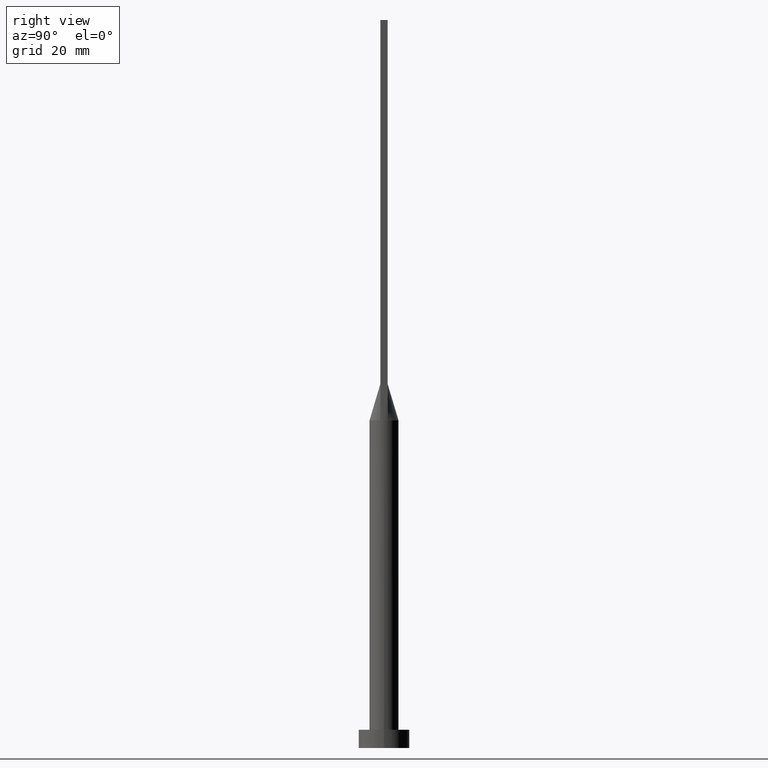
[diagram: clean part render]
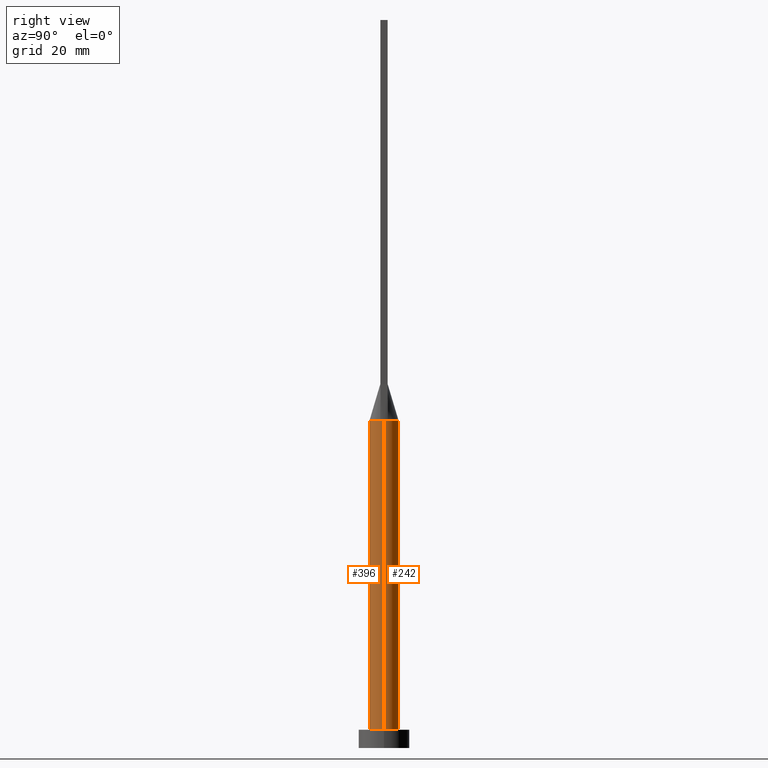
[diagram: same view with one multi-face feature highlighted, each face labeled with its STEP entity id]
A machine part, right view. The highlighted faces form ONE feature: a constant-radius fillet chain: 2 tangent blend faces with common blend radius 4 mm. The faces share edges in the B-rep.
Their STEP definitions:
[1] entity #242 (Cylinder):
#2 = ORIENTED_EDGE ( 'NONE', *, *, #393, .F. ) ;
#9 = CARTESIAN_POINT ( 'NONE',  ( 3.653499896451231521, 1.673258289339057958, 90.00000000000001421 ) ) ;
#11 = CARTESIAN_POINT ( 'NONE',  ( -3.267840578657194239, 2.338604872288698289, 90.00000000000000000 ) ) ;
#12 = AXIS2_PLACEMENT_3D ( 'NONE', #299, #159, #514 ) ;
#20 = DIRECTION ( 'NONE',  ( -1.000000000000000000, 0.000000000000000000, 0.000000000000000000 ) ) ;
#29 = EDGE_CURVE ( 'NONE', #459, #220, #182, .T. ) ;
#51 = CARTESIAN_POINT ( 'NONE',  ( 2.346407003458400808, 3.270103945996944983, 89.99999999999998579 ) ) ;
#56 = CARTESIAN_POINT ( 'NONE',  ( -4.000000000000000000, -2.459132308497027359E-16, 90.00000000000001421 ) ) ;
#79 = CIRCLE ( 'NONE', #348, 4.000000000000000000 ) ;
#80 = CARTESIAN_POINT ( 'NONE',  ( 4.000000000000000000, -1.256865613583667397E-17, 90.00000000000001421 ) ) ;
#89 = CARTESIAN_POINT ( 'NONE',  ( -3.865236553917747120, 1.030730781768519622, 90.00000000000001421 ) ) ;
#98 = CARTESIAN_POINT ( 'NONE',  ( 1.940702937457743582, 3.532374760555930582, 90.00000000000001421 ) ) ;
#101 = CARTESIAN_POINT ( 'NONE',  ( -1.023074425454088221, 3.898373771260455811, 90.00000000000001421 ) ) ;
#130 = DIRECTION ( 'NONE',  ( 0.000000000000000000, 0.000000000000000000, 1.000000000000000000 ) ) ;
#132 = EDGE_CURVE ( 'NONE', #489, #220, #79, .T. ) ;
#138 = CARTESIAN_POINT ( 'NONE',  ( -3.781952206537765537, 1.341853921743403788, 90.00000000000001421 ) ) ;
#140 = CARTESIAN_POINT ( 'NONE',  ( 4.000000000000000000, 4.898587196589412829E-16, 5.000000000000000000 ) ) ;
#150 = LINE ( 'NONE', #505, #361 ) ;
#156 = ORIENTED_EDGE ( 'NONE', *, *, #29, .F. ) ;
#159 = DIRECTION ( 'NONE',  ( 0.000000000000000000, 0.000000000000000000, 1.000000000000000000 ) ) ;
#162 = DIRECTION ( 'NONE',  ( -0.000000000000000000, -0.000000000000000000, -1.000000000000000000 ) ) ;
#182 = LINE ( 'NONE', #256, #279 ) ;
#185 = CARTESIAN_POINT ( 'NONE',  ( 0.000000000000000000, 0.000000000000000000, 5.000000000000000000 ) ) ;
#189 = CARTESIAN_POINT ( 'NONE',  ( 0.5121855420560009753, 4.000000000000000888, 90.00000000000002842 ) ) ;
#192 = CARTESIAN_POINT ( 'NONE',  ( 3.267840578657193795, 2.338604872288698289, 89.99999999999998579 ) ) ;
#200 = AXIS2_PLACEMENT_3D ( 'NONE', #207, #162, #20 ) ;
#207 = CARTESIAN_POINT ( 'NONE',  ( 0.000000000000000000, 0.000000000000000000, 90.00000000000001421 ) ) ;
#208 = ORIENTED_EDGE ( 'NONE', *, *, #132, .T. ) ;
#220 = VERTEX_POINT ( 'NONE', #564 ) ;
#228 = CARTESIAN_POINT ( 'NONE',  ( 1.023074425454087999, 3.898373771260456255, 90.00000000000001421 ) ) ;
#232 = CARTESIAN_POINT ( 'NONE',  ( -3.009488128496037529, 2.672487015486668671, 90.00000000000001421 ) ) ;
#236 = EDGE_CURVE ( 'NONE', #456, #459, #370, .T. ) ;
#242 = ADVANCED_FACE ( 'NONE', ( #382 ), #385, .T. ) ;
#255 = DIRECTION ( 'NONE',  ( 1.000000000000000000, 0.000000000000000000, 0.000000000000000000 ) ) ;
#256 = CARTESIAN_POINT ( 'NONE',  ( -4.000000000000000000, 0.000000000000000000, 90.00000000000001421 ) ) ;
#269 = CARTESIAN_POINT ( 'NONE',  ( 3.865212754195084699, 1.030724393897464841, 90.00000000000001421 ) ) ;
#279 = VECTOR ( 'NONE', #438, 1000.000000000000000 ) ;
#299 = CARTESIAN_POINT ( 'NONE',  ( 0.000000000000000000, 0.000000000000000000, 90.00000000000001421 ) ) ;
#308 = VERTEX_POINT ( 'NONE', #446 ) ;
#317 = CARTESIAN_POINT ( 'NONE',  ( -3.653499896451231521, 1.673258289339058180, 90.00000000000001421 ) ) ;
#320 = DIRECTION ( 'NONE',  ( 0.000000000000000000, 0.000000000000000000, 1.000000000000000000 ) ) ;
#327 = CARTESIAN_POINT ( 'NONE',  ( 3.009488128496037085, 2.672487015486669115, 90.00000000000000000 ) ) ;
#331 = ORIENTED_EDGE ( 'NONE', *, *, #520, .T. ) ;
#347 = VERTEX_POINT ( 'NONE', #80 ) ;
#348 = AXIS2_PLACEMENT_3D ( 'NONE', #185, #320, #498 ) ;
#360 = CARTESIAN_POINT ( 'NONE',  ( -0.5121855420560009753, 4.000000000000000888, 90.00000000000001421 ) ) ;
#361 = VECTOR ( 'NONE', #448, 1000.000000000000000 ) ;
#367 = CARTESIAN_POINT ( 'NONE',  ( -2.346407003458401253, 3.270103945996944095, 90.00000000000000000 ) ) ;
#370 = CIRCLE ( 'NONE', #12, 4.000000000000000000 ) ;
#382 = FACE_OUTER_BOUND ( 'NONE', #581, .T. ) ;
#385 = CYLINDRICAL_SURFACE ( 'NONE', #200, 4.000000000000000000 ) ;
#393 = EDGE_CURVE ( 'NONE', #347, #308, #509, .T. ) ;
#438 = DIRECTION ( 'NONE',  ( -0.000000000000000000, -0.000000000000000000, -1.000000000000000000 ) ) ;
#441 = ORIENTED_EDGE ( 'NONE', *, *, #493, .F. ) ;
#446 = CARTESIAN_POINT ( 'NONE',  ( 3.865212754195084699, 1.030724393897464841, 90.00000000000001421 ) ) ;
#448 = DIRECTION ( 'NONE',  ( -0.000000000000000000, -0.000000000000000000, -1.000000000000000000 ) ) ;
#456 = VERTEX_POINT ( 'NONE', #536 ) ;
#459 = VERTEX_POINT ( 'NONE', #56 ) ;
#465 = ORIENTED_EDGE ( 'NONE', *, *, #236, .F. ) ;
#467 = B_SPLINE_CURVE_WITH_KNOTS ( 'NONE', 3,
 ( #269, #502, #9, #192, #327, #51, #98, #228, #189, #360, #101, #542, #367, #232, #11, #317, #138, #89 ),
 .UNSPECIFIED., .F., .F.,
 ( 4, 2, 2, 2, 2, 2, 2, 2, 4 ),
 ( 0.000000000000000000, 0.1250000000000000000, 0.2500000000000000000, 0.3750000000000000000, 0.5000000000000000000, 0.6250000000000000000, 0.7500000000000000000, 0.8750000000000000000, 1.000000000000000000 ),
 .UNSPECIFIED. ) ;
#489 = VERTEX_POINT ( 'NONE', #140 ) ;
#493 = EDGE_CURVE ( 'NONE', #308, #456, #467, .T. ) ;
#498 = DIRECTION ( 'NONE',  ( 1.000000000000000000, 0.000000000000000000, 0.000000000000000000 ) ) ;
#502 = CARTESIAN_POINT ( 'NONE',  ( 3.781952206537764205, 1.341853921743403788, 89.99999999999998579 ) ) ;
#505 = CARTESIAN_POINT ( 'NONE',  ( 4.000000000000000000, 4.898587196589412829E-16, 90.00000000000001421 ) ) ;
#509 = CIRCLE ( 'NONE', #545, 4.000000000000000000 ) ;
#514 = DIRECTION ( 'NONE',  ( 1.000000000000000000, 0.000000000000000000, 0.000000000000000000 ) ) ;
#520 = EDGE_CURVE ( 'NONE', #347, #489, #150, .T. ) ;
#531 = CARTESIAN_POINT ( 'NONE',  ( 0.000000000000000000, 0.000000000000000000, 90.00000000000001421 ) ) ;
#536 = CARTESIAN_POINT ( 'NONE',  ( -3.865236553917747120, 1.030730781768519622, 90.00000000000001421 ) ) ;
#542 = CARTESIAN_POINT ( 'NONE',  ( -1.940702937457743138, 3.532374760555930582, 90.00000000000001421 ) ) ;
#545 = AXIS2_PLACEMENT_3D ( 'NONE', #531, #130, #255 ) ;
#564 = CARTESIAN_POINT ( 'NONE',  ( -4.000000000000000000, 0.000000000000000000, 5.000000000000000000 ) ) ;
#581 = EDGE_LOOP ( 'NONE', ( #2, #331, #208, #156, #465, #441 ) ) ;
[2] entity #396 (Cylinder):
#8 = CARTESIAN_POINT ( 'NONE',  ( 3.865244591400370577, -1.030732999276501527, 90.00000000000001421 ) ) ;
#13 = EDGE_CURVE ( 'NONE', #459, #42, #229, .T. ) ;
#15 = ORIENTED_EDGE ( 'NONE', *, *, #520, .F. ) ;
#27 = ORIENTED_EDGE ( 'NONE', *, *, #265, .T. ) ;
#29 = EDGE_CURVE ( 'NONE', #459, #220, #182, .T. ) ;
#40 = CIRCLE ( 'NONE', #415, 4.000000000000000000 ) ;
#42 = VERTEX_POINT ( 'NONE', #354 ) ;
#56 = CARTESIAN_POINT ( 'NONE',  ( -4.000000000000000000, -2.459132308497027359E-16, 90.00000000000001421 ) ) ;
#64 = VERTEX_POINT ( 'NONE', #8 ) ;
#66 = DIRECTION ( 'NONE',  ( 0.000000000000000000, 0.000000000000000000, 1.000000000000000000 ) ) ;
#75 = CIRCLE ( 'NONE', #516, 4.000000000000000000 ) ;
#78 = DIRECTION ( 'NONE',  ( 1.000000000000000000, 0.000000000000000000, 0.000000000000000000 ) ) ;
#80 = CARTESIAN_POINT ( 'NONE',  ( 4.000000000000000000, -1.256865613583667397E-17, 90.00000000000001421 ) ) ;
#85 = CIRCLE ( 'NONE', #224, 4.000000000000000000 ) ;
#108 = EDGE_LOOP ( 'NONE', ( #15, #122, #436, #532, #314, #27 ) ) ;
#110 = DIRECTION ( 'NONE',  ( 1.000000000000000000, 0.000000000000000000, 0.000000000000000000 ) ) ;
#113 = CARTESIAN_POINT ( 'NONE',  ( 0.000000000000000000, 0.000000000000000000, 90.00000000000001421 ) ) ;
#118 = CARTESIAN_POINT ( 'NONE',  ( 0.000000000000000000, 0.000000000000000000, 5.000000000000000000 ) ) ;
#122 = ORIENTED_EDGE ( 'NONE', *, *, #291, .F. ) ;
#140 = CARTESIAN_POINT ( 'NONE',  ( 4.000000000000000000, 4.898587196589412829E-16, 5.000000000000000000 ) ) ;
#150 = LINE ( 'NONE', #505, #361 ) ;
#166 = AXIS2_PLACEMENT_3D ( 'NONE', #266, #398, #578 ) ;
#182 = LINE ( 'NONE', #256, #279 ) ;
#187 = DIRECTION ( 'NONE',  ( 1.000000000000000000, 0.000000000000000000, 0.000000000000000000 ) ) ;
#202 = DIRECTION ( 'NONE',  ( 0.000000000000000000, 0.000000000000000000, 1.000000000000000000 ) ) ;
#212 = CARTESIAN_POINT ( 'NONE',  ( 0.000000000000000000, 0.000000000000000000, 90.00000000000001421 ) ) ;
#220 = VERTEX_POINT ( 'NONE', #564 ) ;
#224 = AXIS2_PLACEMENT_3D ( 'NONE', #113, #66, #241 ) ;
#229 = CIRCLE ( 'NONE', #392, 4.000000000000000000 ) ;
#241 = DIRECTION ( 'NONE',  ( 1.000000000000000000, -6.217248937900876626E-15, 0.000000000000000000 ) ) ;
#252 = CYLINDRICAL_SURFACE ( 'NONE', #166, 4.000000000000000000 ) ;
#256 = CARTESIAN_POINT ( 'NONE',  ( -4.000000000000000000, 0.000000000000000000, 90.00000000000001421 ) ) ;
#265 = EDGE_CURVE ( 'NONE', #220, #489, #75, .T. ) ;
#266 = CARTESIAN_POINT ( 'NONE',  ( 0.000000000000000000, 0.000000000000000000, 90.00000000000001421 ) ) ;
#279 = VECTOR ( 'NONE', #438, 1000.000000000000000 ) ;
#291 = EDGE_CURVE ( 'NONE', #64, #347, #85, .T. ) ;
#303 = DIRECTION ( 'NONE',  ( 0.000000000000000000, 0.000000000000000000, 1.000000000000000000 ) ) ;
#314 = ORIENTED_EDGE ( 'NONE', *, *, #29, .T. ) ;
#324 = DIRECTION ( 'NONE',  ( 0.000000000000000000, 0.000000000000000000, 1.000000000000000000 ) ) ;
#347 = VERTEX_POINT ( 'NONE', #80 ) ;
#354 = CARTESIAN_POINT ( 'NONE',  ( -3.865220763612065902, -1.030726602927787949, 90.00000000000001421 ) ) ;
#357 = FACE_OUTER_BOUND ( 'NONE', #108, .T. ) ;
#361 = VECTOR ( 'NONE', #448, 1000.000000000000000 ) ;
#392 = AXIS2_PLACEMENT_3D ( 'NONE', #212, #303, #78 ) ;
#396 = ADVANCED_FACE ( 'NONE', ( #357 ), #252, .T. ) ;
#398 = DIRECTION ( 'NONE',  ( -0.000000000000000000, -0.000000000000000000, -1.000000000000000000 ) ) ;
#407 = CARTESIAN_POINT ( 'NONE',  ( 0.000000000000000000, 0.000000000000000000, 90.00000000000001421 ) ) ;
#415 = AXIS2_PLACEMENT_3D ( 'NONE', #407, #324, #187 ) ;
#436 = ORIENTED_EDGE ( 'NONE', *, *, #473, .F. ) ;
#438 = DIRECTION ( 'NONE',  ( -0.000000000000000000, -0.000000000000000000, -1.000000000000000000 ) ) ;
#448 = DIRECTION ( 'NONE',  ( -0.000000000000000000, -0.000000000000000000, -1.000000000000000000 ) ) ;
#459 = VERTEX_POINT ( 'NONE', #56 ) ;
#473 = EDGE_CURVE ( 'NONE', #42, #64, #40, .T. ) ;
#489 = VERTEX_POINT ( 'NONE', #140 ) ;
#505 = CARTESIAN_POINT ( 'NONE',  ( 4.000000000000000000, 4.898587196589412829E-16, 90.00000000000001421 ) ) ;
#516 = AXIS2_PLACEMENT_3D ( 'NONE', #118, #202, #110 ) ;
#520 = EDGE_CURVE ( 'NONE', #347, #489, #150, .T. ) ;
#532 = ORIENTED_EDGE ( 'NONE', *, *, #13, .F. ) ;
#564 = CARTESIAN_POINT ( 'NONE',  ( -4.000000000000000000, 0.000000000000000000, 5.000000000000000000 ) ) ;
#578 = DIRECTION ( 'NONE',  ( -1.000000000000000000, 0.000000000000000000, 0.000000000000000000 ) ) ;